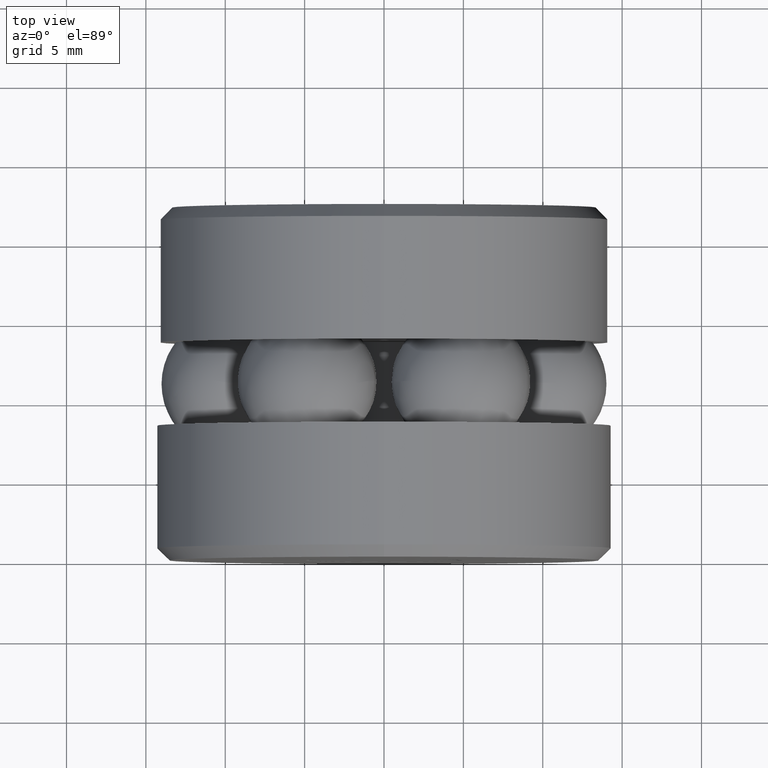
[diagram: clean part render]
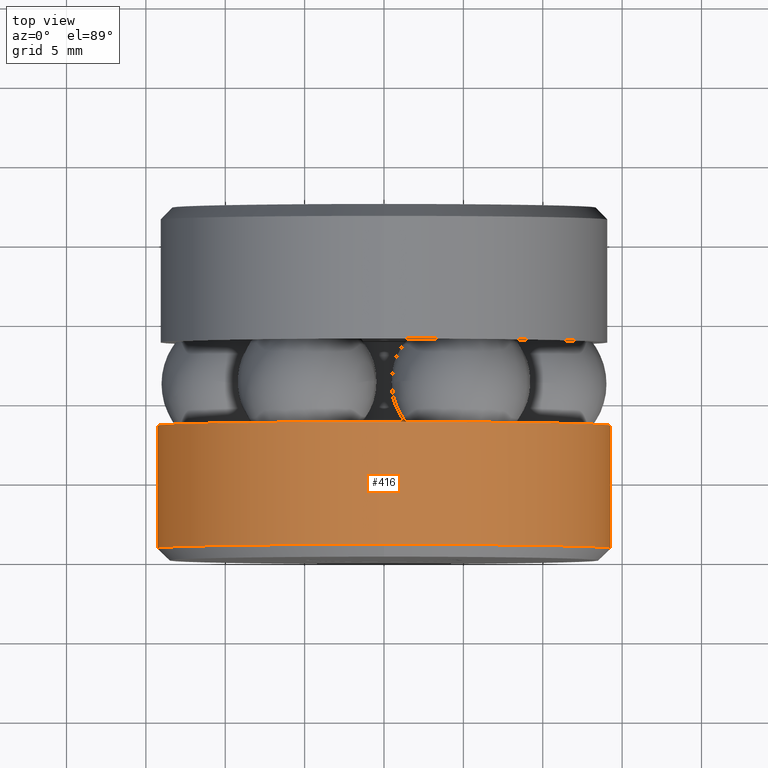
[diagram: same view with one face highlighted and labeled with its STEP entity id]
A machine part, top view. The second image highlights one B-rep face of the part: STEP entity #416.
In plain terms, the highlighted cylindrical surface (bore or boss wall) has radius 14.2875 mm, axis along (-0, 1, -0).
Its self-contained STEP definition (entity closure, byte-faithful):
#25 = EDGE_CURVE ( 'NONE', #215, #215, #305, .T. ) ;
#39 = CARTESIAN_POINT ( 'NONE',  ( 0.0000000000000000000, 0.0000000000000000000, 0.0000000000000000000 ) ) ;
#41 = FACE_OUTER_BOUND ( 'NONE', #169, .T. ) ;
#62 = DIRECTION ( 'NONE',  ( -0.0000000000000000000, 1.000000000000000000, -0.0000000000000000000 ) ) ;
#74 = CARTESIAN_POINT ( 'NONE',  ( 0.0000000000000000000, 0.3342999999999999900, 0.0000000000000000000 ) ) ;
#89 = ORIENTED_EDGE ( 'NONE', *, *, #119, .F. ) ;
#119 = EDGE_CURVE ( 'NONE', #315, #315, #316, .T. ) ;
#169 = EDGE_LOOP ( 'NONE', ( #279 ) ) ;
#177 = AXIS2_PLACEMENT_3D ( 'NONE', #387, #384, #317 ) ;
#196 = CARTESIAN_POINT ( 'NONE',  ( 0.0000000000000000000, 0.02999999999999999200, 0.5625000000000000000 ) ) ;
#215 = VERTEX_POINT ( 'NONE', #196 ) ;
#221 = DIRECTION ( 'NONE',  ( 0.0000000000000000000, 0.0000000000000000000, 1.000000000000000000 ) ) ;
#240 = EDGE_LOOP ( 'NONE', ( #89 ) ) ;
#270 = AXIS2_PLACEMENT_3D ( 'NONE', #39, #430, #313 ) ;
#279 = ORIENTED_EDGE ( 'NONE', *, *, #25, .T. ) ;
#287 = CYLINDRICAL_SURFACE ( 'NONE', #270, 0.5624999999999998900 ) ;
#305 = CIRCLE ( 'NONE', #177, 0.5625000000000000000 ) ;
#313 = DIRECTION ( 'NONE',  ( 0.0000000000000000000, 0.0000000000000000000, 1.000000000000000000 ) ) ;
#315 = VERTEX_POINT ( 'NONE', #509 ) ;
#316 = CIRCLE ( 'NONE', #485, 0.5624999999999998900 ) ;
#317 = DIRECTION ( 'NONE',  ( 0.0000000000000000000, 0.0000000000000000000, 1.000000000000000000 ) ) ;
#384 = DIRECTION ( 'NONE',  ( -0.0000000000000000000, 1.000000000000000000, -0.0000000000000000000 ) ) ;
#387 = CARTESIAN_POINT ( 'NONE',  ( 0.0000000000000000000, 0.02999999999999999200, 0.0000000000000000000 ) ) ;
#416 = ADVANCED_FACE ( 'NONE', ( #41, #495 ), #287, .T. ) ;
#430 = DIRECTION ( 'NONE',  ( -0.0000000000000000000, 1.000000000000000000, -0.0000000000000000000 ) ) ;
#485 = AXIS2_PLACEMENT_3D ( 'NONE', #74, #62, #221 ) ;
#495 = FACE_OUTER_BOUND ( 'NONE', #240, .T. ) ;
#509 = CARTESIAN_POINT ( 'NONE',  ( 0.0000000000000000000, 0.3342999999999999900, 0.5624999999999998900 ) ) ;